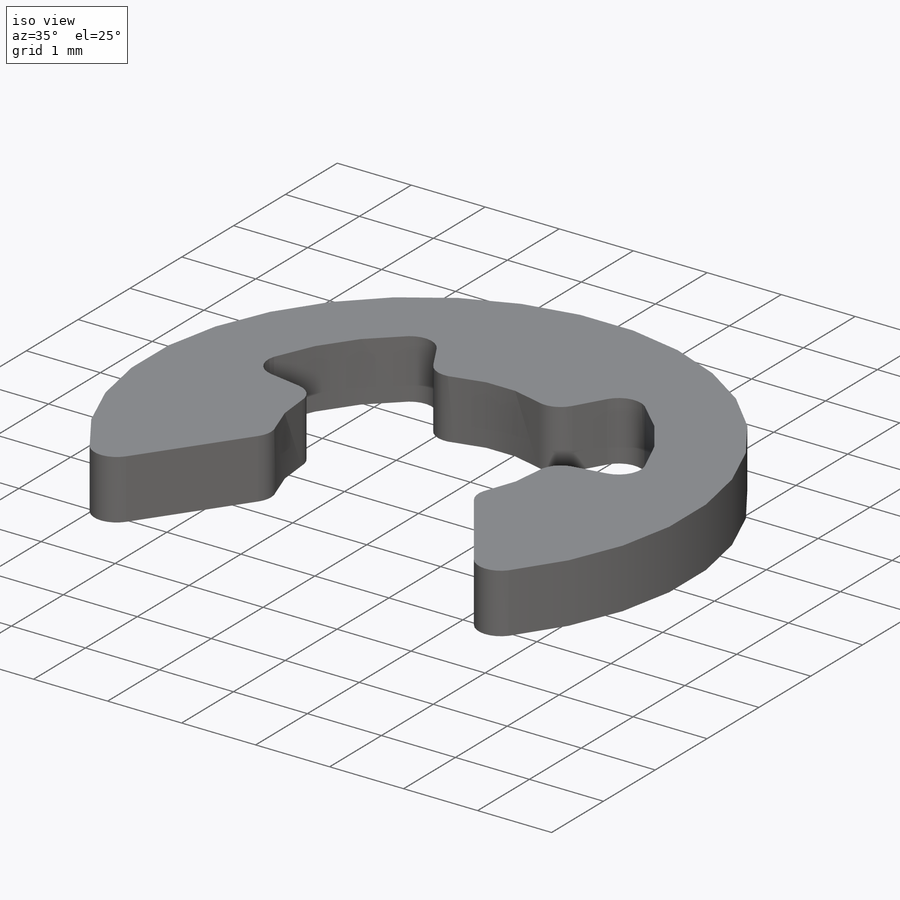
[diagram: iso view]
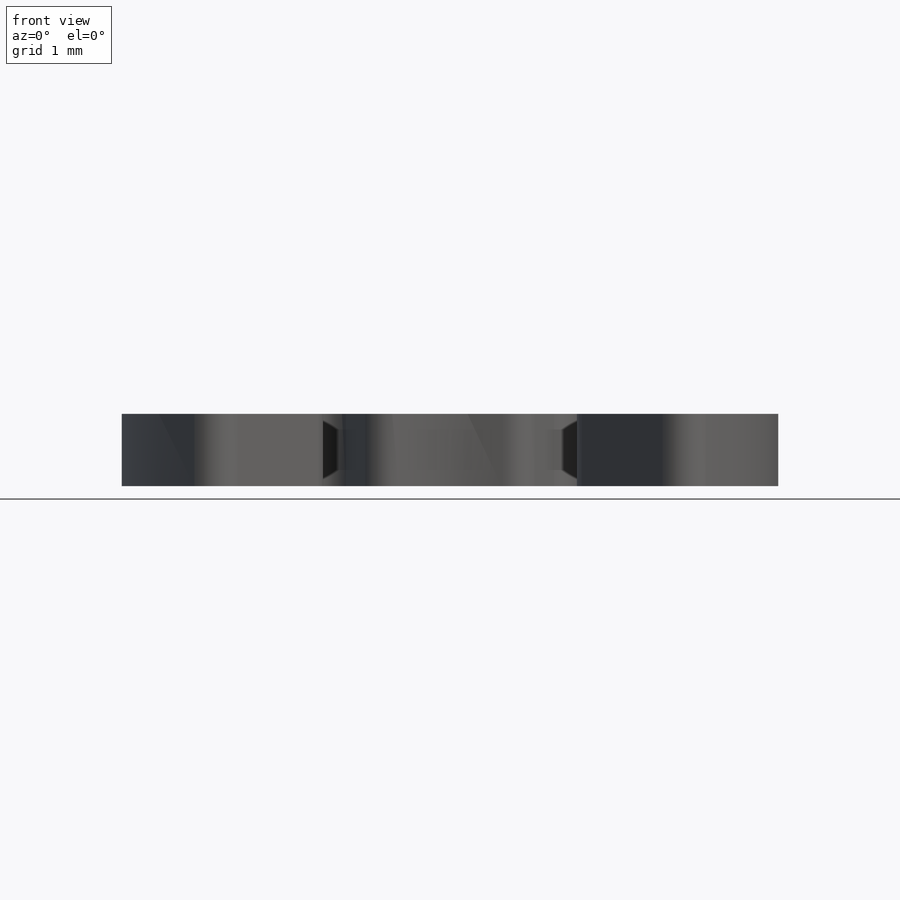
[diagram: front view]
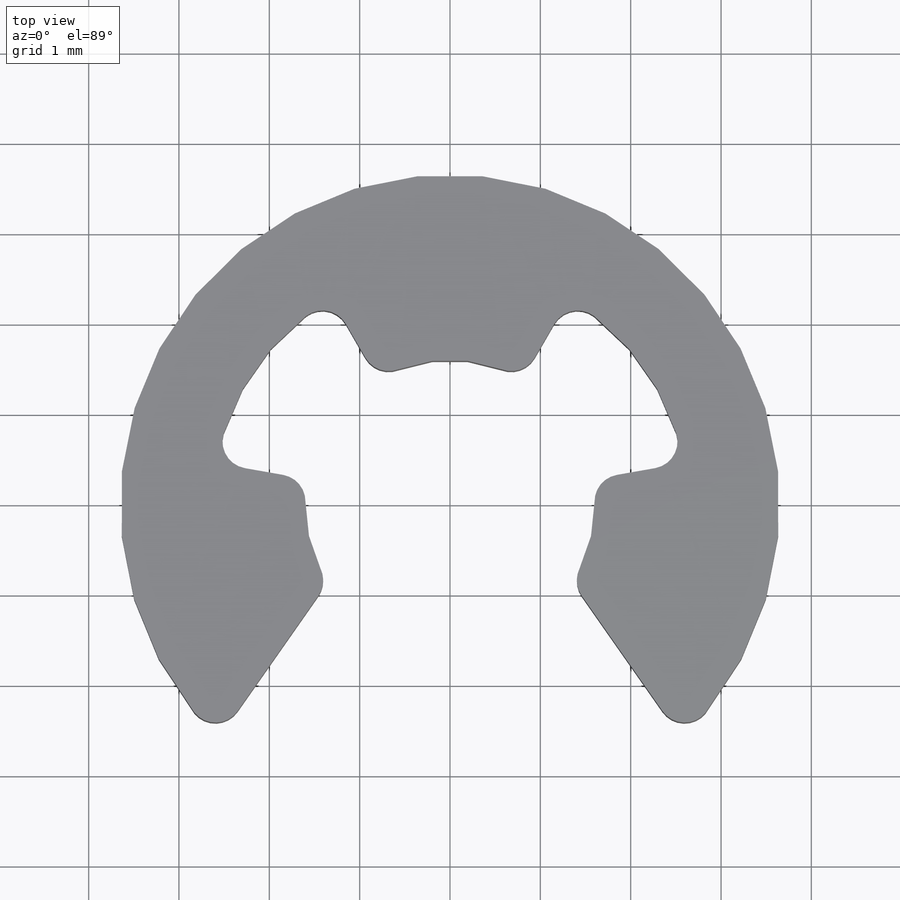
[diagram: top view]
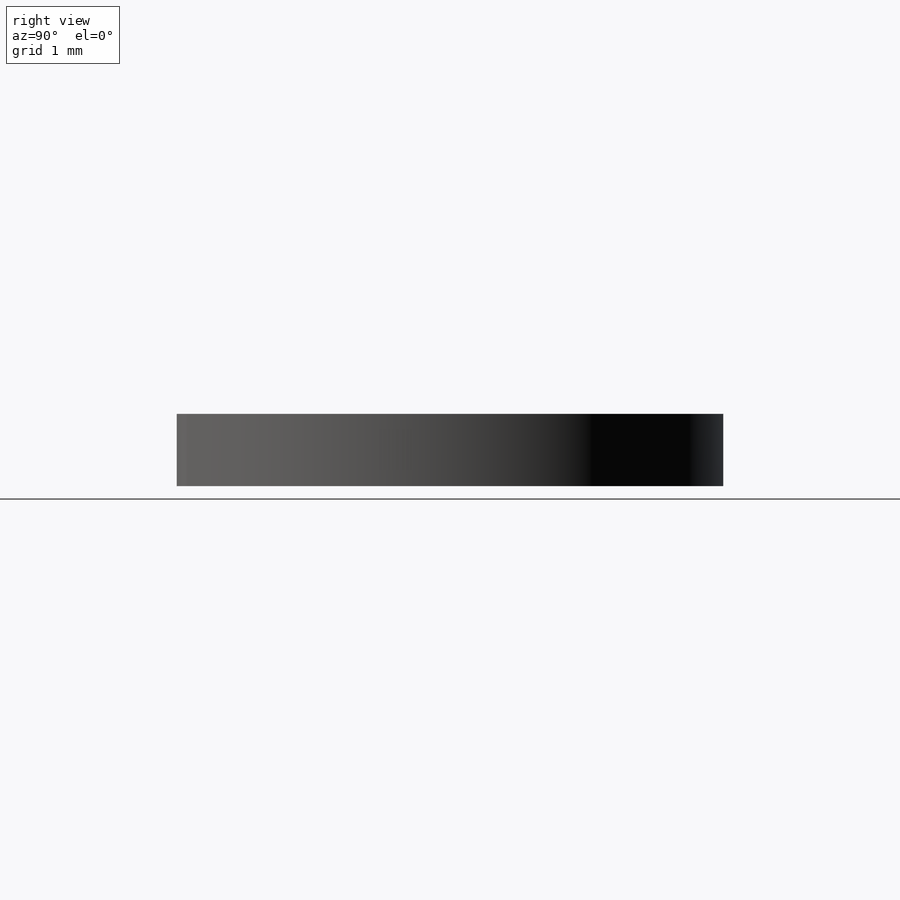
[diagram: right view]
SOLIDWORKS PART (.sldprt)
format: sldprt  version: not decoded by parser v0  size: 202,240 bytes
history: native  units: mm
features: sketch x5, material x1, revolve x1, cut_extrude x1, fillet x1 (+11 scaffold rows collapsed)
feature tree (20):
  scaffold x11  (default folders/planes/origin — collapsed)
  material  "Material <not specified>"
  sketch  "Support-Top"  dims[Diam-Inner=3.2mm Diam-Outer=7.3mm]
  sketch  "Support-Front"  dims[Thickness=0.6mm]
  sketch  "Support-Cut"  dims[c1.D1=~1.289656mm c2.D1=45.0deg c3.D1=~2.579311mm c4.D1=45.0deg c4.D2=~0.268987mm c5.D2=15.0deg c5.D3=~1.289656mm c6.D3=18.0deg c6.Width-Opening=2.7mm c6.D5=~2.579311mm c7.D5=35.0deg c7.D3=1.125mm c8.D3=35.0deg]
  sketch  "Sketch4"  dims[D1=0.8mm]
  revolve  "Clip"  Angle=360deg
  sketch  "Sketch5"
  cut_extrude  "Cut-Inner-Body"  [1 undecoded]
  fillet  "Fillet"  Radius=0.3mm
decode coverage: 6 of 8 modeling features carry decoded parameters
note: ~ marks probable driven/reference dimensions
note: 1 parameter value undecoded
note: suppression state not decoded; provenance and decode notes live in map.json
